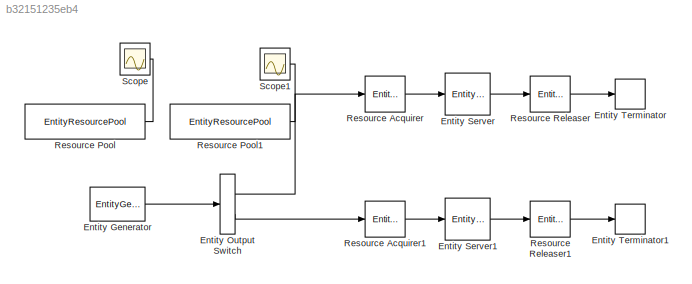
MODEL slx_b32151235eb4
KIND model
CONFIG AbsTol = auto
CONFIG FixedStep = auto
CONFIG MaxStep = auto
CONFIG MinStep = auto
CONFIG RelTol = 1e-3
CONFIG SampleTimeConstraint = Unconstrained
CONFIG Solver = VariableStepDiscrete
CONFIG SolverMode = Auto
CONFIG SolverName = VariableStepDiscrete
CONFIG StartTime = 0.0
CONFIG StopTime = 10.0
BLOCK [EntityGenerator] Entity Generator
  AttributeInitialValue = 0|1
  AttributeName = Type|ServiceTime
  EntityType = Structured
  EntityTypeName = Entity
  GenerateAction = if rand < 0.4\n    entity.Type = 1;\n    entity.ServiceTime = 0.5\nelse\n    entity.Type = 2;\n    entity.ServiceTime = 0.7;
  IntergenerationTimeAction = dt = 0.01 + 0.19 * rand;
  OutputPortMap = o3
  OutputPortMessageModes = m
  Ports = [0, 1]
  TimeSource = MATLAB action
BLOCK [EntityOutputSwitch] Entity Output Switch
  InputPortMap = u1
  InputPortMessageModes = m
  OutputPortMap = o0,o1
  OutputPortMessageModes = m,m
  Ports = [1, 2]
  SwitchAttributeName = Type
  SwitchingCriterion = From attribute
BLOCK [EntityServer] Entity Server
  Capacity = 4
  InputPortMap = u2
  InputPortMessageModes = m
  OutputPortMap = o9
  OutputPortMessageModes = m
  Ports = [1, 1]
  ServiceTimeSource = Attribute
  ServiceTimeValue = 0.5
BLOCK [EntityServer] Entity Server1
  Capacity = 8
  InputPortMap = u2
  InputPortMessageModes = m
  OutputPortMap = o9
  OutputPortMessageModes = m
  Ports = [1, 1]
  ServiceTimeSource = Attribute
  ServiceTimeValue = 0.7
BLOCK [EntityTerminator] Entity Terminator
  InputPortMap = u0
  InputPortMessageModes = m
  Ports = [1]
BLOCK [EntityTerminator] Entity Terminator1
  InputPortMap = u0
  InputPortMessageModes = m
  Ports = [1]
BLOCK [EntityResourceAcquirer] Resource Acquirer
  InputPortMap = u0
  InputPortMessageModes = m
  NumberWaitingEntities = 6
  OutputPortMap = o3
  OutputPortMessageModes = m
  Ports = [1, 1]
  ResourceName = ResourceType1
BLOCK [EntityResourceAcquirer] Resource Acquirer1
  InputPortMap = u0
  InputPortMessageModes = m
  NumberWaitingEntities = 10
  OutputPortMap = o3
  OutputPortMessageModes = m
  Ports = [1, 1]
  ResourceName = ResourceType2
BLOCK [EntityResourcePool] Resource Pool
  AmountInUse = on
  OutputPortMap = o0
  Ports = [0, 1]
  ResourceAmount = 4
  ResourceName = ResourceType1
BLOCK [EntityResourcePool] Resource Pool1
  AmountInUse = on
  OutputPortMap = o0
  Ports = [0, 1]
  ResourceAmount = 8
  ResourceName = ResourceType2
BLOCK [EntityResourceReleaser] Resource Releaser
  InputPortMap = u0
  InputPortMessageModes = m
  OutputPortMap = o0
  OutputPortMessageModes = m
  Ports = [1, 1]
  ResourceName = ResourceType1
  ResourceToRelease = Selected
BLOCK [EntityResourceReleaser] Resource Releaser1
  InputPortMap = u0
  InputPortMessageModes = m
  OutputPortMap = o0
  OutputPortMessageModes = m
  Ports = [1, 1]
  ResourceName = ResourceType2
  ResourceToRelease = Selected
BLOCK [Scope] Scope
  Ports = [1]
  ScopeSpecificationString = Simulink.scopes.TimeScopeBlockCfg('CurrentConfiguration', extmgr.ConfigurationSet(extmgr.Configuration('Core','General UI',true),extmgr.Configuration('Core','Source UI',true),extmgr.Configuration('Sources','WiredSimulink',true),extmgr.Configuration('Visuals','Time Domain',true,'SerializedDisplays',{struct('MinYLimReal','-0.5','MaxYLimReal','4.5','YLabelReal','','MinYLimMag','0.00000','MaxYLimMag',...<+1444ch>
BLOCK [Scope] Scope1
  Ports = [1]
  ScopeSpecificationString = Simulink.scopes.TimeScopeBlockCfg('CurrentConfiguration', extmgr.ConfigurationSet(extmgr.Configuration('Core','General UI',true),extmgr.Configuration('Core','Source UI',true),extmgr.Configuration('Sources','WiredSimulink',true,'DataLoggingVariableName','ScopeData1'),extmgr.Configuration('Visuals','Time Domain',true,'SerializedDisplays',{struct('MinYLimReal','-1.00000','MaxYLimReal','9.00000','YLab...<+1508ch>
LINE Entity Generator:1 -> Entity Output Switch:1
LINE Entity Output Switch:1 -> Resource Acquirer:1
LINE Entity Output Switch:2 -> Resource Acquirer1:1
LINE Entity Server1:1 -> Resource Releaser1:1
LINE Entity Server:1 -> Resource Releaser:1
LINE Resource Acquirer1:1 -> Entity Server1:1
LINE Resource Acquirer:1 -> Entity Server:1
LINE Resource Pool1:1 -> Scope1:1
LINE Resource Pool:1 -> Scope:1
LINE Resource Releaser1:1 -> Entity Terminator1:1
LINE Resource Releaser:1 -> Entity Terminator:1
